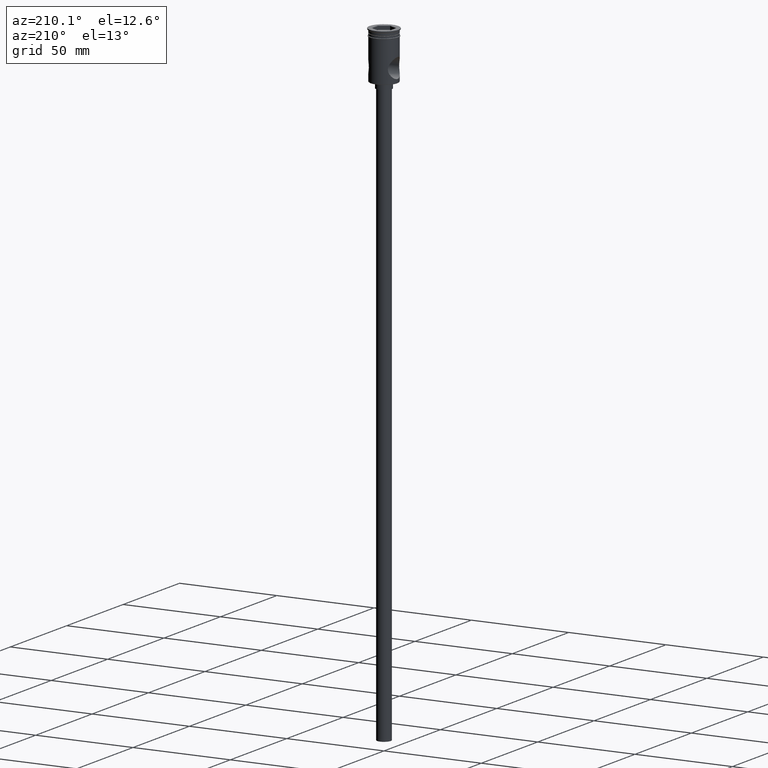
[diagram: clean part render]
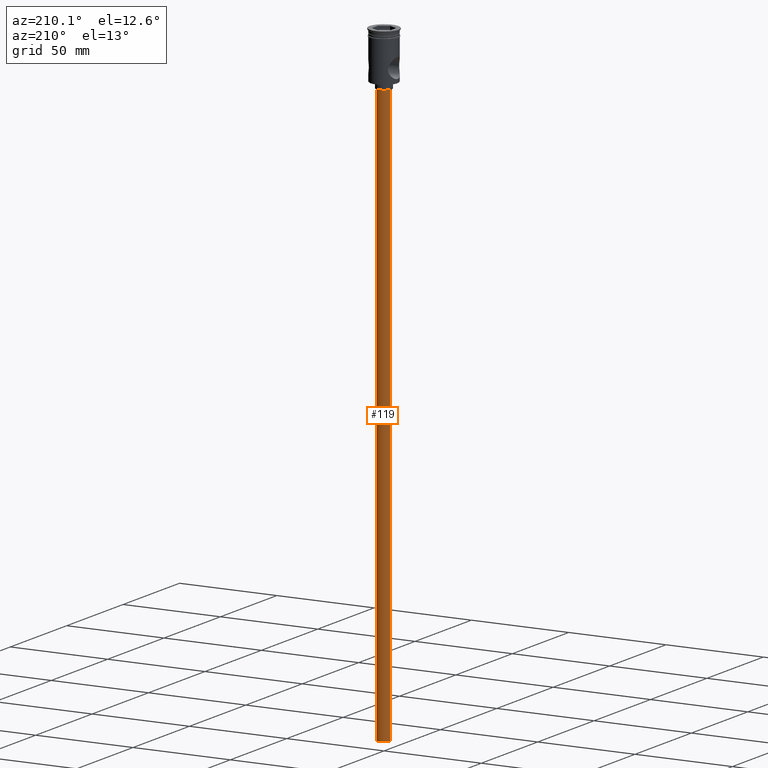
[diagram: same view with one face highlighted and labeled with its STEP entity id]
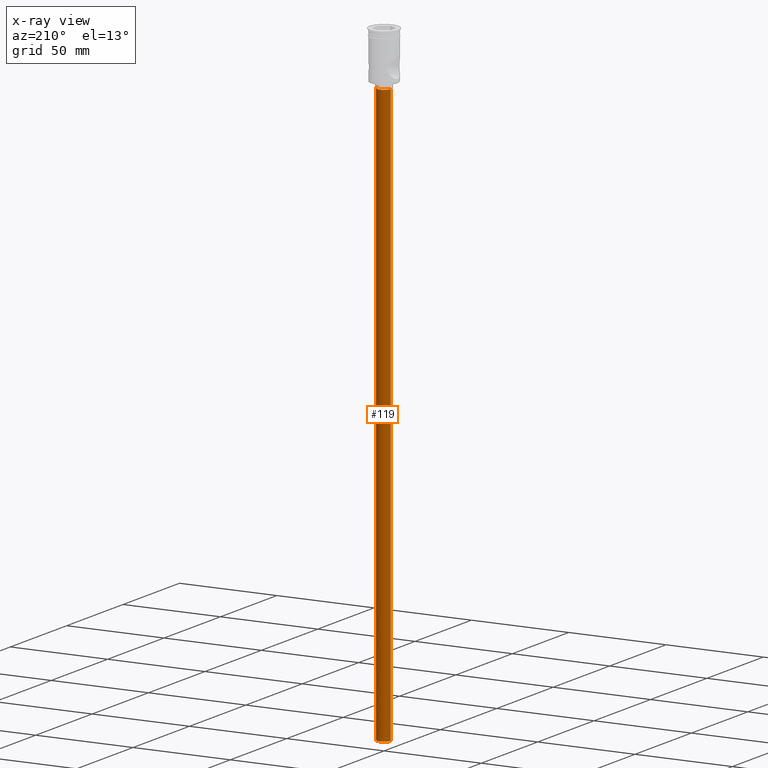
[diagram: x-ray of the same camera — body ghosted, the highlighted face saturated]
A machine part, auxiliary view. The second image highlights one B-rep face of the part: STEP entity #119.
The next image is the same camera in x-ray: the body ghosted, the highlighted face saturated — about 0% of this face is hidden behind the body in this view.
In plain terms, the highlighted cylindrical surface (edge-blend (fillet) strip) has radius 3.5 mm, axis along (-0, -0, 1).
Its self-contained STEP definition (entity closure, byte-faithful):
#112 = CARTESIAN_POINT ( 'NONE',  ( -3.500000000000000444, 4.286263797015737088E-16, -324.5000000000000000 ) ) ;
#119 = ADVANCED_FACE ( 'NONE', ( #1253 ), #1374, .T. ) ;
#248 = AXIS2_PLACEMENT_3D ( 'NONE', #1362, #665, #573 ) ;
#256 = EDGE_CURVE ( 'NONE', #378, #897, #322, .T. ) ;
#261 = DIRECTION ( 'NONE',  ( -0.000000000000000000, -0.000000000000000000, 1.000000000000000000 ) ) ;
#266 = VERTEX_POINT ( 'NONE', #946 ) ;
#293 = CARTESIAN_POINT ( 'NONE',  ( 0.000000000000000000, 0.000000000000000000, -27.50000000000000000 ) ) ;
#301 = DIRECTION ( 'NONE',  ( 0.000000000000000000, 0.000000000000000000, -1.000000000000000000 ) ) ;
#322 = CIRCLE ( 'NONE', #1051, 3.500000000000000444 ) ;
#367 = CIRCLE ( 'NONE', #813, 3.500000000000000444 ) ;
#378 = VERTEX_POINT ( 'NONE', #511 ) ;
#399 = DIRECTION ( 'NONE',  ( -1.000000000000000000, 0.000000000000000000, 0.000000000000000000 ) ) ;
#401 = EDGE_CURVE ( 'NONE', #266, #770, #367, .T. ) ;
#435 = CARTESIAN_POINT ( 'NONE',  ( 3.500000000000000444, 0.000000000000000000, -27.50000000000000000 ) ) ;
#458 = LINE ( 'NONE', #112, #790 ) ;
#478 = DIRECTION ( 'NONE',  ( 0.000000000000000000, 0.000000000000000000, -1.000000000000000000 ) ) ;
#496 = LINE ( 'NONE', #1231, #930 ) ;
#511 = CARTESIAN_POINT ( 'NONE',  ( -3.500000000000000444, 4.286263797015737088E-16, -324.5000000000000000 ) ) ;
#573 = DIRECTION ( 'NONE',  ( 1.000000000000000000, 0.000000000000000000, 0.000000000000000000 ) ) ;
#665 = DIRECTION ( 'NONE',  ( -0.000000000000000000, -0.000000000000000000, 1.000000000000000000 ) ) ;
#770 = VERTEX_POINT ( 'NONE', #435 ) ;
#790 = VECTOR ( 'NONE', #1043, 1000.000000000000000 ) ;
#813 = AXIS2_PLACEMENT_3D ( 'NONE', #293, #301, #399 ) ;
#816 = CARTESIAN_POINT ( 'NONE',  ( 3.500000000000000444, 0.000000000000000000, -324.5000000000000000 ) ) ;
#851 = EDGE_LOOP ( 'NONE', ( #1388, #993, #1448, #1289 ) ) ;
#897 = VERTEX_POINT ( 'NONE', #816 ) ;
#930 = VECTOR ( 'NONE', #261, 1000.000000000000000 ) ;
#946 = CARTESIAN_POINT ( 'NONE',  ( -3.500000000000000444, 4.286263797015737088E-16, -27.50000000000000000 ) ) ;
#992 = EDGE_CURVE ( 'NONE', #378, #266, #458, .T. ) ;
#993 = ORIENTED_EDGE ( 'NONE', *, *, #992, .T. ) ;
#1043 = DIRECTION ( 'NONE',  ( -0.000000000000000000, -0.000000000000000000, 1.000000000000000000 ) ) ;
#1051 = AXIS2_PLACEMENT_3D ( 'NONE', #1429, #478, #1166 ) ;
#1166 = DIRECTION ( 'NONE',  ( -1.000000000000000000, 0.000000000000000000, 0.000000000000000000 ) ) ;
#1231 = CARTESIAN_POINT ( 'NONE',  ( 3.500000000000000444, 0.000000000000000000, -324.5000000000000000 ) ) ;
#1253 = FACE_OUTER_BOUND ( 'NONE', #851, .T. ) ;
#1289 = ORIENTED_EDGE ( 'NONE', *, *, #1355, .F. ) ;
#1355 = EDGE_CURVE ( 'NONE', #897, #770, #496, .T. ) ;
#1362 = CARTESIAN_POINT ( 'NONE',  ( 0.000000000000000000, 0.000000000000000000, -324.5000000000000000 ) ) ;
#1374 = CYLINDRICAL_SURFACE ( 'NONE', #248, 3.500000000000000444 ) ;
#1388 = ORIENTED_EDGE ( 'NONE', *, *, #256, .F. ) ;
#1429 = CARTESIAN_POINT ( 'NONE',  ( 0.000000000000000000, 0.000000000000000000, -324.5000000000000000 ) ) ;
#1448 = ORIENTED_EDGE ( 'NONE', *, *, #401, .T. ) ;